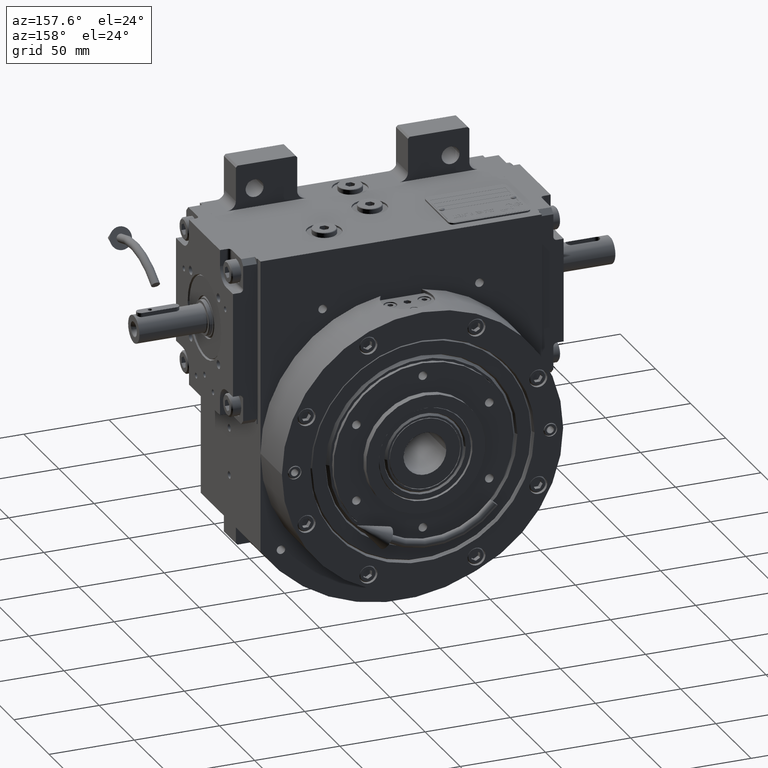
[diagram: clean part render]
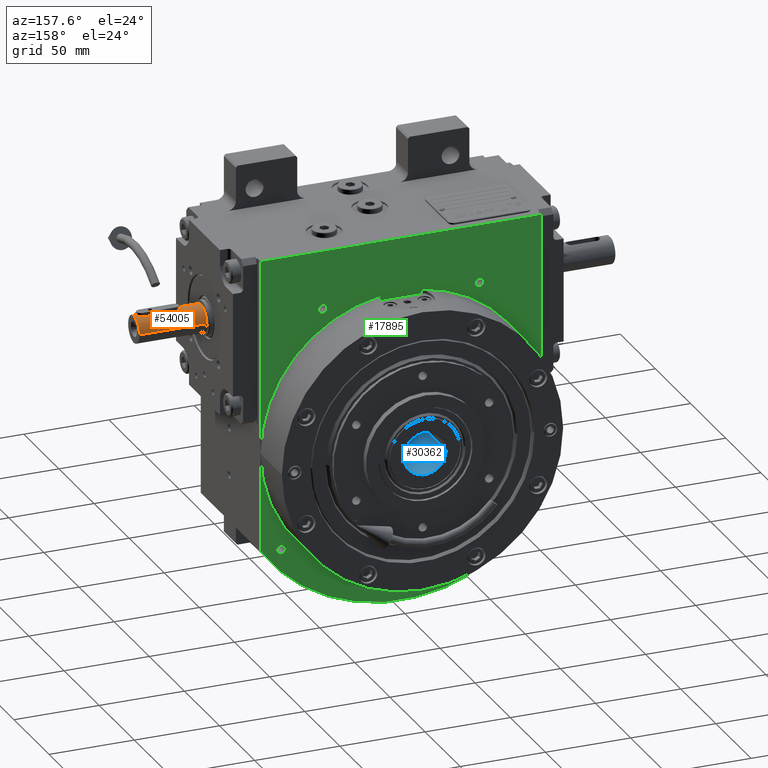
[diagram: same view with three faces highlighted in distinct colors, each labeled with its STEP entity id]
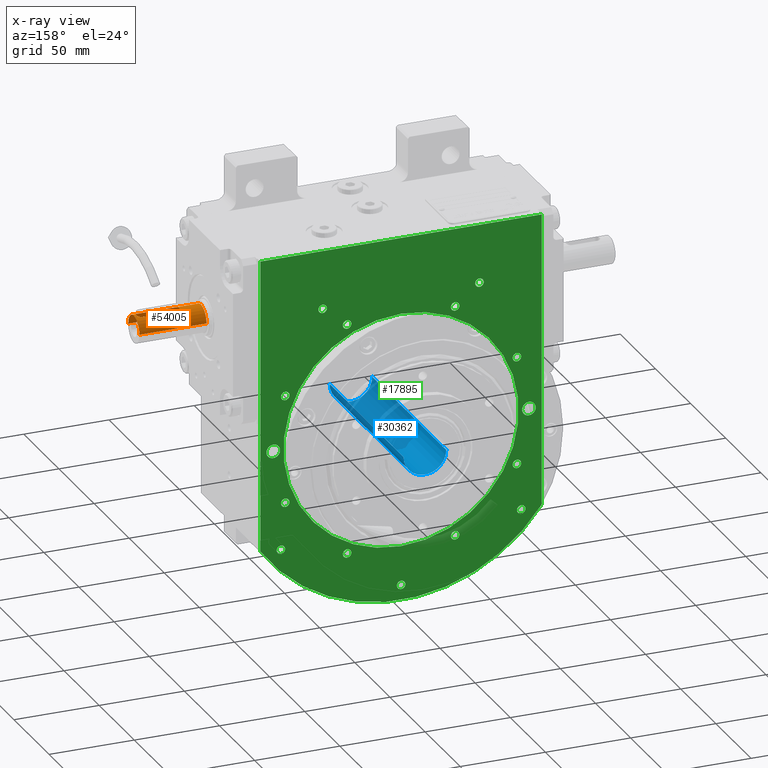
[diagram: x-ray of the same camera — body ghosted, the three highlighted faces saturated]
A machine part, auxiliary view with three faces highlighted in distinct colors.
The next image is the same camera in x-ray (body ghosted, the three faces saturated) — at least one of them is partly hidden behind the body in this view.
Their STEP definitions:

[orange] entity #54005 — the highlighted cylindrical surface (edge-blend (fillet) strip) has radius 8 mm, axis along (-1, 0, 0).
#294 = CARTESIAN_POINT ( 'NONE',  ( -1.693420934586990390, -79.66071306435799215, 7.818701610350905717 ) ) ;
#507 = EDGE_CURVE ( 'NONE', #14905, #35915, #59081, .T. ) ;
#657 = DIRECTION ( 'NONE',  ( 1.000000000000000000, 0.000000000000000000, -8.437694987151189707E-15 ) ) ;
#740 = CARTESIAN_POINT ( 'NONE',  ( 2.499999999999934275, -81.49999999999998579, 7.599342076785323030 ) ) ;
#894 = CARTESIAN_POINT ( 'NONE',  ( -0.9739860630258452279, -103.8024692427873248, 7.940448518515786702 ) ) ;
#997 = CARTESIAN_POINT ( 'NONE',  ( -2.039842226443641771, -80.04546655734039007, 7.737024747556461080 ) ) ;
#1302 = CARTESIAN_POINT ( 'NONE',  ( 0.7601614020288187668, -103.8820006834997258, 7.963809886907984747 ) ) ;
#1479 = EDGE_CURVE ( 'NONE', #30105, #14905, #27124, .T. ) ;
#1630 = CARTESIAN_POINT ( 'NONE',  ( 0.6392033444089094685, -103.9183691897240607, 7.974666920835501216 ) ) ;
#1662 = DIRECTION ( 'NONE',  ( 4.683861624749757595E-31, -1.000000000000000000, -9.367723249499515189E-31 ) ) ;
#1977 = CARTESIAN_POINT ( 'NONE',  ( 0.5583251389089792793, -103.9382416998808196, 7.980698606350792090 ) ) ;
#2885 = EDGE_CURVE ( 'NONE', #30105, #4517, #27999, .T. ) ;
#3369 = CARTESIAN_POINT ( 'NONE',  ( 2.430346878768975039, -102.1663473157102828, 7.622796429069601309 ) ) ;
#3505 = CARTESIAN_POINT ( 'NONE',  ( 1.860789045275186515, -79.83022871806318221, 7.780784499347873862 ) ) ;
#3753 = CARTESIAN_POINT ( 'NONE',  ( -1.619322404274953664, -103.4162097538556822, 7.835913282276480096 ) ) ;
#4089 = CARTESIAN_POINT ( 'NONE',  ( -2.334563050082438806, -102.3947116797433807, 7.651647996439749910 ) ) ;
#4454 = CARTESIAN_POINT ( 'NONE',  ( -1.073217818120447475, -103.7581458584323713, 7.927505834590044209 ) ) ;
#4517 = VERTEX_POINT ( 'NONE', #61662 ) ;
#4814 = CARTESIAN_POINT ( 'NONE',  ( -2.321781631207970431, -102.4270937209118841, 7.655485254225465219 ) ) ;
#4915 = CARTESIAN_POINT ( 'NONE',  ( 2.309893421232838584, -80.54375579039783872, 7.659059943619897837 ) ) ;
#5258 = CARTESIAN_POINT ( 'NONE',  ( -0.9256277952045682822, -79.17762717140867323, 7.946252628734393753 ) ) ;
#5609 = CARTESIAN_POINT ( 'NONE',  ( -2.500000000000066169, -81.49999999999998579, 7.599342076785323030 ) ) ;
#5868 = CARTESIAN_POINT ( 'NONE',  ( -0.3122289411811475790, -104.0000000000000142, 7.999999999999710454 ) ) ;
#5971 = CARTESIAN_POINT ( 'NONE',  ( -1.674829783585241039, -79.64377826720813403, 7.822663933521245561 ) ) ;
#6257 = CARTESIAN_POINT ( 'NONE',  ( 1.674829741835547114, -103.3562217703935033, 7.822663943330967484 ) ) ;
#6307 = CARTESIAN_POINT ( 'NONE',  ( 0.6420978377273284243, -79.05937359642165063, 7.980692895796765995 ) ) ;
#6615 = CARTESIAN_POINT ( 'NONE',  ( 1.400394581815520567, -103.5725665278173153, 7.876043154077071229 ) ) ;
#6815 = VECTOR ( 'NONE', #1662, 1000.000000000000000 ) ;
#7888 = CARTESIAN_POINT ( 'NONE',  ( -2.500000000000066169, -81.49999999999998579, 7.599342076785323030 ) ) ;
#8283 = EDGE_CURVE ( 'NONE', #49467, #18082, #28607, .T. ) ;
#8879 = ORIENTED_EDGE ( 'NONE', *, *, #66856, .F. ) ;
#9280 = FACE_BOUND ( 'NONE', #12291, .T. ) ;
#9426 = CARTESIAN_POINT ( 'NONE',  ( -1.103304680731177934, -103.7436430396096938, 7.923293706657409174 ) ) ;
#9529 = B_SPLINE_CURVE_WITH_KNOTS ( 'NONE', 3,
 ( #63796, #15200, #15555, #20856, #63092, #31844, #36817, #26170, #48159, #47813, #42508, #4915, #53500, #26514, #69784, #52440, #21204, #52084, #3505, #25116, #46771, #47103, #32907, #38586, #54202, #11656, #60974, #60257, #54908, #55271, #33259, #37887, #66234, #10940, #6307, #22961, #43561, #32196, #38234, #17647, #16594, #27917, #22244, #5258, #59905, #65894, #27573, #21553, #49933, #48871, #65175, #54561, #22608, #5971, #294, #64839, #16250, #39290, #997, #10593, #11292, #43919, #21906, #53840, #59542, #32558, #43231, #49579, #17311, #48521, #26864, #5609 ),
 .UNSPECIFIED., .F., .F.,
 ( 4, 2, 2, 1, 1, 1, 2, 2, 2, 2, 2, 2, 2, 2, 2, 2, 1, 1, 2, 2, 2, 2, 2, 1, 1, 1, 2, 2, 2, 2, 2, 2, 2, 2, 2, 2, 1, 1, 2, 2, 4 ),
 ( 0.000000000000000000, 0.06249999999999940326, 0.09375000000000167921, 0.1093750000000002776, 0.1171874999999970440, 0.1210937499999929085, 0.1230468749999908268, 0.1249999999999887590, 0.1875000000000156264, 0.2187500000000291156, 0.2343750000000358324, 0.2421875000000376921, 0.2500000000000395239, 0.3125000000000400791, 0.3437500000000390799, 0.3593750000000385247, 0.3671875000000383027, 0.3710937500000381917, 0.3730468750000382472, 0.3750000000000382472, 0.5000000000000400791, 0.5625000000000409672, 0.5937500000000408562, 0.6093750000000408562, 0.6171875000000399680, 0.6210937500000405231, 0.6230468750000406342, 0.6250000000000408562, 0.6874999999999886757, 0.7187499999999611422, 0.7343749999999473754, 0.7421874999999404920, 0.7499999999999336087, 0.8124999999998833156, 0.8437499999998581135, 0.8593749999998456790, 0.8671874999998393507, 0.8710937499998362421, 0.8730468749998382405, 0.8749999999998402389, 1.000000000000000000 ),
 .UNSPECIFIED. ) ;
#9934 = EDGE_CURVE ( 'NONE', #4517, #35915, #47375, .T. ) ;
#10134 = CARTESIAN_POINT ( 'NONE',  ( -1.262573481225525374, -103.6592927539918350, 7.899329246347268629 ) ) ;
#10273 = ORIENTED_EDGE ( 'NONE', *, *, #31064, .T. ) ;
#10593 = CARTESIAN_POINT ( 'NONE',  ( -2.168659579177123931, -80.25357648016695578, 7.701311984265553079 ) ) ;
#10940 = CARTESIAN_POINT ( 'NONE',  ( 0.9654889590629808227, -79.19395140777740494, 7.941492741751966733 ) ) ;
#11292 = CARTESIAN_POINT ( 'NONE',  ( -2.204339293450607862, -80.31874706351440807, 7.690878176541270150 ) ) ;
#11656 = CARTESIAN_POINT ( 'NONE',  ( 1.196502427732053730, -79.30381167198214598, 7.909689381527173602 ) ) ;
#12291 = EDGE_LOOP ( 'NONE', ( #10273, #54534, #36777, #51256, #8879 ) ) ;
#12654 = CARTESIAN_POINT ( 'NONE',  ( 1.924781711887127322, -103.1107540319521689, 7.766715037473522543 ) ) ;
#12984 = CARTESIAN_POINT ( 'NONE',  ( 1.582158747936825760, -103.4362196727485923, 7.841748880057241244 ) ) ;
#13292 = ORIENTED_EDGE ( 'NONE', *, *, #9934, .T. ) ;
#14905 = VERTEX_POINT ( 'NONE', #66410 ) ;
#15200 = CARTESIAN_POINT ( 'NONE',  ( 2.499999999999936495, -81.33046526988005098, 7.601053109335280666 ) ) ;
#15267 = DIRECTION ( 'NONE',  ( 1.000000000000000000, 0.000000000000000000, -8.437694987151184974E-15 ) ) ;
#15555 = CARTESIAN_POINT ( 'NONE',  ( 2.482707356171678370, -81.16371504373714174, 7.606916456933626058 ) ) ;
#15814 = CARTESIAN_POINT ( 'NONE',  ( -8.000000000000065725, -66.09999999999999432, 0.000000000000000000 ) ) ;
#15910 = VECTOR ( 'NONE', #37804, 1000.000000000000000 ) ;
#15933 = CARTESIAN_POINT ( 'NONE',  ( -8.881784197000813520E-16, -66.09999999999999432, 0.000000000000000000 ) ) ;
#16250 = CARTESIAN_POINT ( 'NONE',  ( -1.748128541432759198, -79.71259486395139504, 7.806733636063505344 ) ) ;
#16594 = CARTESIAN_POINT ( 'NONE',  ( -0.7601371585158931410, -79.11799152341782815, 7.963812738570651639 ) ) ;
#17138 = AXIS2_PLACEMENT_3D ( 'NONE', #41194, #41892, #15267 ) ;
#17311 = CARTESIAN_POINT ( 'NONE',  ( -2.306742151783235606, -80.53617158843383095, 7.660008567906831267 ) ) ;
#17647 = CARTESIAN_POINT ( 'NONE',  ( -0.6391695085849001812, -79.08162164491186275, 7.974670843423039557 ) ) ;
#18082 = VERTEX_POINT ( 'NONE', #20638 ) ;
#18292 = CARTESIAN_POINT ( 'NONE',  ( 1.193536090284757822, -103.7027300309425470, 7.910995323808521995 ) ) ;
#18627 = CARTESIAN_POINT ( 'NONE',  ( 0.8906742496777694251, -103.8361301771416834, 7.950276292533050793 ) ) ;
#19328 = CARTESIAN_POINT ( 'NONE',  ( 2.281394072897041880, -102.5224785235288039, 7.667699372738701058 ) ) ;
#19695 = CARTESIAN_POINT ( 'NONE',  ( -1.943922020714331289, -103.0727322403290174, 7.760753481466680093 ) ) ;
#20015 = VECTOR ( 'NONE', #31752, 1000.000000000000000 ) ;
#20172 = CARTESIAN_POINT ( 'NONE',  ( -8.000000000000000000, -105.4999999999999858, 5.273559366969493567E-13 ) ) ;
#20638 = CARTESIAN_POINT ( 'NONE',  ( -2.500000000000066169, -101.5000000000000000, 7.599342076785850608 ) ) ;
#20757 = CARTESIAN_POINT ( 'NONE',  ( -2.500000000000066169, -101.5000000000000000, 7.599342076785850608 ) ) ;
#20856 = CARTESIAN_POINT ( 'NONE',  ( 2.433768593788077972, -80.92250430396406102, 7.621939950903765748 ) ) ;
#21105 = CARTESIAN_POINT ( 'NONE',  ( -2.482707383844124038, -101.8362847497630952, 7.606916429779071898 ) ) ;
#21204 = CARTESIAN_POINT ( 'NONE',  ( 1.943922035151659733, -79.92726777720164932, 7.760753477608751894 ) ) ;
#21553 = CARTESIAN_POINT ( 'NONE',  ( -1.067508236372659569, -79.23640628122829810, 7.929129305063736588 ) ) ;
#21906 = CARTESIAN_POINT ( 'NONE',  ( -2.262901956743322174, -80.43691029397633940, 7.673319066181252701 ) ) ;
#22244 = CARTESIAN_POINT ( 'NONE',  ( -0.8906645423323721333, -79.16386607656249907, 7.950277459945172431 ) ) ;
#22608 = CARTESIAN_POINT ( 'NONE',  ( -1.619150631844596289, -79.59453235858265430, 7.834308677923846886 ) ) ;
#22961 = CARTESIAN_POINT ( 'NONE',  ( 0.3121782513797731196, -79.00000002186202153, 7.999994292076680225 ) ) ;
#23090 = VERTEX_POINT ( 'NONE', #740 ) ;
#23234 = CARTESIAN_POINT ( 'NONE',  ( 0.9405903361060158341, -103.8163157804874430, 7.944484931987513043 ) ) ;
#23577 = CARTESIAN_POINT ( 'NONE',  ( 0.9571699627064862437, -103.8095105061650685, 7.942501022636291097 ) ) ;
#25116 = CARTESIAN_POINT ( 'NONE',  ( 1.843069730316523103, -79.81067629450772927, 7.784956261883010598 ) ) ;
#25353 = CARTESIAN_POINT ( 'NONE',  ( -1.469426813124658615, -103.5291211921942960, 7.864377076594892380 ) ) ;
#25558 = CARTESIAN_POINT ( 'NONE',  ( 2.927413515468598497E-29, -65.50000000000000000, 0.000000000000000000 ) ) ;
#25666 = CARTESIAN_POINT ( 'NONE',  ( 2.499999999999934275, -101.5000000000000000, 7.599342076785323030 ) ) ;
#26170 = CARTESIAN_POINT ( 'NONE',  ( 2.334563021455908327, -80.60528824611051846, 7.651648004319794971 ) ) ;
#26514 = CARTESIAN_POINT ( 'NONE',  ( 2.211639362258275732, -80.32302285553738841, 7.689393544937220604 ) ) ;
#26839 = DIRECTION ( 'NONE',  ( -7.962564762074587911E-30, -1.000000000000000000, 1.002546245711064011E-15 ) ) ;
#26864 = CARTESIAN_POINT ( 'NONE',  ( -2.500000000000065281, -81.16084879098659144, 7.602765040137509978 ) ) ;
#27124 = LINE ( 'NONE', #70052, #15910 ) ;
#27473 = CARTESIAN_POINT ( 'NONE',  ( 4.385040994232079924E-11, -103.9999999999955804, 8.000000000000120792 ) ) ;
#27573 = CARTESIAN_POINT ( 'NONE',  ( -0.9571700192519310146, -79.19048951727215524, 7.942501018822824221 ) ) ;
#27860 = CARTESIAN_POINT ( 'NONE',  ( 1.730604303250870668, -103.3043446562647034, 7.810615493049329672 ) ) ;
#27917 = CARTESIAN_POINT ( 'NONE',  ( -0.8205310525004978484, -79.13781588510421727, 7.957931175922659861 ) ) ;
#27999 = CIRCLE ( 'NONE', #40469, 8.000000000000000000 ) ;
#28223 = CARTESIAN_POINT ( 'NONE',  ( 1.693420889178520294, -103.3392869773679053, 7.818701621006987956 ) ) ;
#28607 = LINE ( 'NONE', #65876, #6815 ) ;
#30105 = VERTEX_POINT ( 'NONE', #64482 ) ;
#30179 = DIRECTION ( 'NONE',  ( 1.000000000000000000, 0.000000000000000000, -8.437694987151189707E-15 ) ) ;
#30675 = CARTESIAN_POINT ( 'NONE',  ( -2.309893432402044589, -102.4562441826294759, 7.659059942767486362 ) ) ;
#31023 = CARTESIAN_POINT ( 'NONE',  ( -1.008357172198633744, -103.7877103616287258, 7.936136174749776728 ) ) ;
#31064 = EDGE_CURVE ( 'NONE', #23090, #49898, #54292, .T. ) ;
#31358 = VERTEX_POINT ( 'NONE', #51400 ) ;
#31372 = CARTESIAN_POINT ( 'NONE',  ( -2.032618819128730436, -102.9586770806716061, 7.738482214712804286 ) ) ;
#31752 = DIRECTION ( 'NONE',  ( 4.683861624749757595E-31, -1.000000000000000000, -9.367723249499515189E-31 ) ) ;
#31844 = CARTESIAN_POINT ( 'NONE',  ( 2.378121920320446225, -80.72788381417944947, 7.638611844260628558 ) ) ;
#32098 = CARTESIAN_POINT ( 'NONE',  ( -2.433768643298963585, -102.0774954870597071, 7.621939923613155976 ) ) ;
#32196 = CARTESIAN_POINT ( 'NONE',  ( -0.3163611264303023973, -79.01466021605666867, 7.995178932222377632 ) ) ;
#32558 = CARTESIAN_POINT ( 'NONE',  ( -2.299652578068983377, -80.51934854338620084, 7.662151317218241608 ) ) ;
#32907 = CARTESIAN_POINT ( 'NONE',  ( 1.619322386118688062, -79.58379023461478141, 7.835913286343736850 ) ) ;
#33259 = CARTESIAN_POINT ( 'NONE',  ( 0.9841849079011064649, -79.20185371595601964, 7.939186577244388587 ) ) ;
#33858 = CARTESIAN_POINT ( 'NONE',  ( -0.9841849342362438691, -103.7981462727568385, 7.939186575924312983 ) ) ;
#35300 = CARTESIAN_POINT ( 'NONE',  ( 2.249329146587023320, -102.5916207879226505, 7.677433120866428595 ) ) ;
#35915 = VERTEX_POINT ( 'NONE', #20172 ) ;
#36172 = EDGE_CURVE ( 'NONE', #18082, #31358, #54586, .T. ) ;
#36375 = CARTESIAN_POINT ( 'NONE',  ( -1.860789053244781277, -103.1697712729407925, 7.780784497345386796 ) ) ;
#36725 = CARTESIAN_POINT ( 'NONE',  ( -2.312435461662479597, -102.4500878185152430, 7.658295087710894400 ) ) ;
#36777 = ORIENTED_EDGE ( 'NONE', *, *, #36172, .F. ) ;
#36817 = CARTESIAN_POINT ( 'NONE',  ( 2.359042001678974376, -80.67071240173901003, 7.644314115432109702 ) ) ;
#37804 = DIRECTION ( 'NONE',  ( 4.683861624749757595E-31, -1.000000000000000000, -9.367723249499515189E-31 ) ) ;
#37887 = CARTESIAN_POINT ( 'NONE',  ( 0.9739860343722317459, -79.19753074509038981, 7.940448520076104799 ) ) ;
#37983 = AXIS2_PLACEMENT_3D ( 'NONE', #25558, #63207, #30179 ) ;
#38234 = CARTESIAN_POINT ( 'NONE',  ( -0.5582878383232234842, -79.06174975841848607, 7.980702886066483259 ) ) ;
#38448 = ORIENTED_EDGE ( 'NONE', *, *, #507, .F. ) ;
#38586 = CARTESIAN_POINT ( 'NONE',  ( 1.469426811532480448, -79.47087880693786133, 7.864377077441821129 ) ) ;
#38638 = EDGE_LOOP ( 'NONE', ( #13292, #38448, #68340, #53056 ) ) ;
#39178 = CARTESIAN_POINT ( 'NONE',  ( -0.6420507535615168626, -103.9406460026054617, 7.980698606383382021 ) ) ;
#39290 = CARTESIAN_POINT ( 'NONE',  ( -1.924781681136912503, -79.88924594813117608, 7.766715043241143590 ) ) ;
#39584 = CARTESIAN_POINT ( 'NONE',  ( 0.1561144705904728980, -104.0000000000000142, 7.999999999999712230 ) ) ;
#40263 = CARTESIAN_POINT ( 'NONE',  ( 1.619150600551494401, -103.4054676677428688, 7.834308685338369216 ) ) ;
#40469 = AXIS2_PLACEMENT_3D ( 'NONE', #15933, #26839, #657 ) ;
#40875 = CYLINDRICAL_SURFACE ( 'NONE', #37983, 8.000000000000000000 ) ;
#41194 = CARTESIAN_POINT ( 'NONE',  ( 8.881784196980167057E-16, -105.4999999999999858, 5.273559366969493567E-13 ) ) ;
#41319 = CARTESIAN_POINT ( 'NONE',  ( 2.262901976323552500, -102.5630896637919989, 7.673319054273617823 ) ) ;
#41349 = CARTESIAN_POINT ( 'NONE',  ( -2.500000000000065281, -101.6695345930384065, 7.601053091262465422 ) ) ;
#41564 = FACE_OUTER_BOUND ( 'NONE', #38638, .T. ) ;
#41677 = CARTESIAN_POINT ( 'NONE',  ( 2.306742137515188862, -102.4638284456815995, 7.660008568000871598 ) ) ;
#41710 = CARTESIAN_POINT ( 'NONE',  ( -2.359042043660067645, -102.3292874808928445, 7.644314101199683797 ) ) ;
#41892 = DIRECTION ( 'NONE',  ( 4.683861624749757595E-31, -1.000000000000000000, -9.367723249499515189E-31 ) ) ;
#42508 = CARTESIAN_POINT ( 'NONE',  ( 2.312435448347983868, -80.54991214909891539, 7.658295089364600905 ) ) ;
#42770 = CARTESIAN_POINT ( 'NONE',  ( -2.413631302826460878, -102.1564244269222286, 7.627985835901045952 ) ) ;
#43119 = CARTESIAN_POINT ( 'NONE',  ( -0.9672228224972615473, -103.8053185195522730, 7.941279730866193098 ) ) ;
#43231 = CARTESIAN_POINT ( 'NONE',  ( -2.303557479101959515, -80.52859177676407398, 7.660970409150063887 ) ) ;
#43473 = CARTESIAN_POINT ( 'NONE',  ( -0.9654897271027074179, -103.8060482725256577, 7.941492650600213921 ) ) ;
#43561 = CARTESIAN_POINT ( 'NONE',  ( -0.1560888630750259798, -78.99999998906898213, 8.000002853960385352 ) ) ;
#43919 = CARTESIAN_POINT ( 'NONE',  ( -2.249329119355337969, -80.40837915558012128, 7.677433135013878029 ) ) ;
#44560 = CARTESIAN_POINT ( 'NONE',  ( 0.9256327576328409190, -103.8223708385404365, 7.946252027353325254 ) ) ;
#44888 = CARTESIAN_POINT ( 'NONE',  ( 0.9505563138213194430, -103.8122438603152915, 7.943297443901697008 ) ) ;
#45914 = CARTESIAN_POINT ( 'NONE',  ( 2.499999999999935607, -101.8391516377785422, 7.602765096812790446 ) ) ;
#46278 = CARTESIAN_POINT ( 'NONE',  ( 2.204339340298131944, -102.6812528476400956, 7.690878157353457034 ) ) ;
#46636 = CARTESIAN_POINT ( 'NONE',  ( 2.168659634716334494, -102.7464234234344218, 7.701311963956271711 ) ) ;
#46771 = CARTESIAN_POINT ( 'NONE',  ( 1.806370080199156014, -79.77148973213682837, 7.793483740494734135 ) ) ;
#46999 = CARTESIAN_POINT ( 'NONE',  ( -1.806370105743895893, -103.2285102410354085, 7.793483734321789314 ) ) ;
#47103 = CARTESIAN_POINT ( 'NONE',  ( 1.786310771109915763, -79.75077664594313376, 7.798083882302994319 ) ) ;
#47375 = LINE ( 'NONE', #15814, #20015 ) ;
#47813 = CARTESIAN_POINT ( 'NONE',  ( 2.316189119986125089, -80.55910011815063854, 7.657166291048784323 ) ) ;
#48159 = CARTESIAN_POINT ( 'NONE',  ( 2.321781611066191076, -80.57290622878713293, 7.655485258560551287 ) ) ;
#48253 = CARTESIAN_POINT ( 'NONE',  ( 2.499999999999934275, -81.49999999999998579, 7.599342076785323030 ) ) ;
#48421 = CARTESIAN_POINT ( 'NONE',  ( -1.912125993829062898, -103.1113541516930638, 7.768545143780593243 ) ) ;
#48521 = CARTESIAN_POINT ( 'NONE',  ( -2.430347043750785030, -80.83365309564688062, 7.622796372071170445 ) ) ;
#48871 = CARTESIAN_POINT ( 'NONE',  ( -1.400394583862470066, -79.42743347347914096, 7.876043153365923644 ) ) ;
#48969 = B_SPLINE_CURVE_WITH_KNOTS ( 'NONE', 3,
 ( #55213, #39584, #66528, #1977, #1630, #1302, #56243, #18627, #44560, #23234, #44888, #23577, #61237, #18292, #6615, #61579, #12984, #40263, #6257, #28223, #27860, #49523, #12654, #52301, #46636, #46278, #35300, #41319, #19328, #57648, #68266, #51260, #62617, #41677, #3369, #45914, #25666 ),
 .UNSPECIFIED., .F., .F.,
 ( 4, 2, 2, 1, 1, 1, 2, 2, 2, 2, 2, 2, 2, 2, 2, 2, 1, 1, 2, 2, 4 ),
 ( 0.5000000000000000000, 0.5625000000000396350, 0.5937500000000593969, 0.6093750000000692779, 0.6171875000000733857, 0.6210937500000744960, 0.6230468750000750511, 0.6250000000000754952, 0.6875000000000667244, 0.7187500000000608402, 0.7343750000000579536, 0.7421875000000551781, 0.7500000000000524025, 0.8125000000000217604, 0.8437500000000064393, 0.8593749999999986677, 0.8671874999999947820, 0.8710937499999963363, 0.8730468750000007772, 0.8750000000000052180, 1.000000000000000000 ),
 .UNSPECIFIED. ) ;
#49467 = VERTEX_POINT ( 'NONE', #7888 ) ;
#49523 = CARTESIAN_POINT ( 'NONE',  ( 1.748128468984877948, -103.2874052071413757, 7.806733652958826042 ) ) ;
#49579 = CARTESIAN_POINT ( 'NONE',  ( -2.306126302292645480, -80.53470601702331066, 7.660194624969506982 ) ) ;
#49898 = VERTEX_POINT ( 'NONE', #50378 ) ;
#49933 = CARTESIAN_POINT ( 'NONE',  ( -1.193536086755152992, -79.29726996681931439, 7.910995325772343989 ) ) ;
#50378 = CARTESIAN_POINT ( 'NONE',  ( 2.499999999999934275, -101.5000000000000000, 7.599342076785323030 ) ) ;
#51199 = VECTOR ( 'NONE', #59300, 1000.000000000000000 ) ;
#51256 = ORIENTED_EDGE ( 'NONE', *, *, #8283, .F. ) ;
#51260 = CARTESIAN_POINT ( 'NONE',  ( 2.303557467424539151, -102.4714082509158430, 7.660970408203831461 ) ) ;
#51400 = CARTESIAN_POINT ( 'NONE',  ( 4.385040994232079924E-11, -103.9999999999955804, 8.000000000000120792 ) ) ;
#52084 = CARTESIAN_POINT ( 'NONE',  ( 1.912126000616581001, -79.88864585588555656, 7.768545142054657404 ) ) ;
#52301 = CARTESIAN_POINT ( 'NONE',  ( 2.039842285281525225, -102.9545333609491138, 7.737024730599107336 ) ) ;
#52337 = CARTESIAN_POINT ( 'NONE',  ( -1.786310813231847927, -103.2492233111073148, 7.798083872374331094 ) ) ;
#52440 = CARTESIAN_POINT ( 'NONE',  ( 2.032618850961132484, -80.04132296233069610, 7.738482205519764179 ) ) ;
#53037 = CARTESIAN_POINT ( 'NONE',  ( -1.196502426440154032, -103.6961883285300132, 7.909689382643851907 ) ) ;
#53056 = ORIENTED_EDGE ( 'NONE', *, *, #2885, .T. ) ;
#53402 = CARTESIAN_POINT ( 'NONE',  ( -1.029707664918064092, -103.7781476961735336, 7.933340056381174676 ) ) ;
#53500 = CARTESIAN_POINT ( 'NONE',  ( 2.268657162229617441, -80.44451192643948900, 7.671471542138298183 ) ) ;
#53742 = CARTESIAN_POINT ( 'NONE',  ( -2.211639328035650998, -102.6769772081062655, 7.689393558455789091 ) ) ;
#53840 = CARTESIAN_POINT ( 'NONE',  ( -2.281394066029703183, -80.47752146100458503, 7.667699380447071889 ) ) ;
#54005 = ADVANCED_FACE ( 'NONE', ( #41564, #9280 ), #40875, .T. ) ;
#54202 = CARTESIAN_POINT ( 'NONE',  ( 1.262573484231561682, -79.34070724783289563, 7.899329245348400086 ) ) ;
#54292 = LINE ( 'NONE', #48253, #51199 ) ;
#54534 = ORIENTED_EDGE ( 'NONE', *, *, #69642, .F. ) ;
#54561 = CARTESIAN_POINT ( 'NONE',  ( -1.582158772954937120, -79.56378034752202666, 7.841748874047691054 ) ) ;
#54586 = B_SPLINE_CURVE_WITH_KNOTS ( 'NONE', 3,
 ( #20757, #41349, #21105, #32098, #42770, #57684, #41710, #4089, #4814, #68623, #36725, #30675, #64030, #53742, #58388, #31372, #19695, #48421, #36375, #58747, #46999, #52337, #3753, #25353, #10134, #53037, #9426, #4454, #53402, #31023, #33858, #894, #43119, #43473, #39178, #5868, #27473 ),
 .UNSPECIFIED., .F., .F.,
 ( 4, 2, 2, 1, 1, 1, 2, 2, 2, 2, 2, 2, 2, 2, 2, 2, 1, 1, 2, 2, 4 ),
 ( 0.000000000000000000, 0.06250000000000981160, 0.09375000000001730560, 0.1093750000000184852, 0.1171875000000165562, 0.1210937500000155848, 0.1230468750000150990, 0.1250000000000145994, 0.1875000000000366374, 0.2187500000000476286, 0.2343750000000531519, 0.2421875000000559275, 0.2500000000000586753, 0.3125000000000808797, 0.3437500000000905942, 0.3593750000000939804, 0.3671875000000942579, 0.3710937500000929812, 0.3730468750000924261, 0.3750000000000918710, 0.5000000000000000000 ),
 .UNSPECIFIED. ) ;
#54908 = CARTESIAN_POINT ( 'NONE',  ( 1.029707647488318001, -79.22185229593100075, 7.933340056805956664 ) ) ;
#55213 = CARTESIAN_POINT ( 'NONE',  ( 4.385040994232079924E-11, -103.9999999999955804, 8.000000000000120792 ) ) ;
#55271 = CARTESIAN_POINT ( 'NONE',  ( 1.008357150952972514, -79.21228962897184545, 7.936136175550103644 ) ) ;
#56243 = CARTESIAN_POINT ( 'NONE',  ( 0.8205494057223722271, -103.8621775848404667, 7.957928993530575035 ) ) ;
#57648 = CARTESIAN_POINT ( 'NONE',  ( 2.290173002886755960, -102.5027187581402615, 7.665027386559819966 ) ) ;
#57684 = CARTESIAN_POINT ( 'NONE',  ( -2.378121968122614227, -102.2721160393968063, 7.638611825847669401 ) ) ;
#58388 = CARTESIAN_POINT ( 'NONE',  ( -2.082829102350954642, -102.8850916564722837, 7.725106330460694615 ) ) ;
#58747 = CARTESIAN_POINT ( 'NONE',  ( -1.843069743752230982, -103.1893236906983304, 7.784956258549307506 ) ) ;
#59081 = CIRCLE ( 'NONE', #17138, 8.000000000000000000 ) ;
#59300 = DIRECTION ( 'NONE',  ( 4.683861624749757595E-31, -1.000000000000000000, -9.367723249499515189E-31 ) ) ;
#59542 = CARTESIAN_POINT ( 'NONE',  ( -2.290173002686686665, -80.49728124111598504, 7.665027391958669334 ) ) ;
#59905 = CARTESIAN_POINT ( 'NONE',  ( -0.9405874952399069233, -79.18368306412415336, 7.944485278239328707 ) ) ;
#60257 = CARTESIAN_POINT ( 'NONE',  ( 1.073217807602763418, -79.24185413649865950, 7.927505834357015502 ) ) ;
#60974 = CARTESIAN_POINT ( 'NONE',  ( 1.103304673860907359, -79.25635695696504968, 7.923293706110198009 ) ) ;
#61237 = CARTESIAN_POINT ( 'NONE',  ( 1.067508222952339603, -103.7635937273605720, 7.929129304385879706 ) ) ;
#61579 = CARTESIAN_POINT ( 'NONE',  ( 1.472239342304371812, -103.5226722468600258, 7.863100564355685052 ) ) ;
#61662 = CARTESIAN_POINT ( 'NONE',  ( -8.000000000000065725, -66.09999999999999432, 3.480229993080286022E-09 ) ) ;
#62617 = CARTESIAN_POINT ( 'NONE',  ( 2.306126288175577077, -102.4652940166914163, 7.660194624968016619 ) ) ;
#63092 = CARTESIAN_POINT ( 'NONE',  ( 2.413631249271968482, -80.84357537995785492, 7.627985860989250355 ) ) ;
#63207 = DIRECTION ( 'NONE',  ( -4.683861624749757595E-31, 1.000000000000000000, 9.367723249499515189E-31 ) ) ;
#63796 = CARTESIAN_POINT ( 'NONE',  ( 2.499999999999934275, -81.49999999999998579, 7.599342076785323030 ) ) ;
#64030 = CARTESIAN_POINT ( 'NONE',  ( -2.268657147672601404, -102.5554881115370307, 7.671471551454430937 ) ) ;
#64482 = CARTESIAN_POINT ( 'NONE',  ( 7.999999999999934275, -66.09999999999999432, -3.480229993080286022E-09 ) ) ;
#64839 = CARTESIAN_POINT ( 'NONE',  ( -1.730604356255505127, -79.69565539449075686, 7.810615480604616856 ) ) ;
#65175 = CARTESIAN_POINT ( 'NONE',  ( -1.472239351285113518, -79.47732775901589264, 7.863100561985560510 ) ) ;
#65876 = CARTESIAN_POINT ( 'NONE',  ( -2.500000000000066169, -81.49999999999998579, 7.599342076785323030 ) ) ;
#65894 = CARTESIAN_POINT ( 'NONE',  ( -0.9505549066143550441, -79.18775555938863420, 7.943297617279672096 ) ) ;
#66234 = CARTESIAN_POINT ( 'NONE',  ( 0.9672227922674254685, -79.19468146776313233, 7.941279732590551532 ) ) ;
#66410 = CARTESIAN_POINT ( 'NONE',  ( 8.000000000000000000, -105.4999999999999858, 0.000000000000000000 ) ) ;
#66528 = CARTESIAN_POINT ( 'NONE',  ( 0.3163992054419080269, -103.9853349339470299, 7.995174651587482195 ) ) ;
#66856 = EDGE_CURVE ( 'NONE', #23090, #49467, #9529, .T. ) ;
#68266 = CARTESIAN_POINT ( 'NONE',  ( 2.299652570020695563, -102.4806514754110225, 7.662151314881127107 ) ) ;
#68340 = ORIENTED_EDGE ( 'NONE', *, *, #1479, .F. ) ;
#68623 = CARTESIAN_POINT ( 'NONE',  ( -2.316189136086677980, -102.4408998422357797, 7.657166288311987756 ) ) ;
#69642 = EDGE_CURVE ( 'NONE', #31358, #49898, #48969, .T. ) ;
#69784 = CARTESIAN_POINT ( 'NONE',  ( 2.082829138399814539, -80.11490839759532889, 7.725106319125401910 ) ) ;
#70052 = CARTESIAN_POINT ( 'NONE',  ( 7.999999999999934275, -66.09999999999999432, 0.000000000000000000 ) ) ;

[blue] entity #30362 — the highlighted cylindrical surface (edge-blend (fillet) strip) has radius 12.5 mm, axis along (0, -1, 0).
#1357 = AXIS2_PLACEMENT_3D ( 'NONE', #34225, #1933, #32552 ) ;
#1597 = FACE_OUTER_BOUND ( 'NONE', #60619, .T. ) ;
#1933 = DIRECTION ( 'NONE',  ( 0.000000000000000000, 0.000000000000000000, 1.000000000000000000 ) ) ;
#3048 = VERTEX_POINT ( 'NONE', #17672 ) ;
#6695 = ORIENTED_EDGE ( 'NONE', *, *, #7639, .F. ) ;
#7639 = EDGE_CURVE ( 'NONE', #3048, #48578, #20571, .T. ) ;
#9731 = CIRCLE ( 'NONE', #49386, 12.50000000000000000 ) ;
#16763 = CIRCLE ( 'NONE', #42802, 12.50000000000000000 ) ;
#17672 = CARTESIAN_POINT ( 'NONE',  ( -12.50000000000000000, 7.343775652694783940E-16, 11.99999999999986677 ) ) ;
#20571 = LINE ( 'NONE', #60316, #44140 ) ;
#21320 = CARTESIAN_POINT ( 'NONE',  ( 8.881784197001250351E-16, 2.664765652062028867E-15, -93.49999999999894840 ) ) ;
#23063 = DIRECTION ( 'NONE',  ( 0.000000000000000000, 0.000000000000000000, -1.000000000000000000 ) ) ;
#28179 = CARTESIAN_POINT ( 'NONE',  ( 8.881784197001250351E-16, 2.664765652062028867E-15, 11.99999999999986677 ) ) ;
#28456 = VERTEX_POINT ( 'NONE', #61269 ) ;
#28608 = VERTEX_POINT ( 'NONE', #46664 ) ;
#30362 = ADVANCED_FACE ( 'NONE', ( #1597 ), #64836, .F. ) ;
#31599 = LINE ( 'NONE', #46875, #36933 ) ;
#32552 = DIRECTION ( 'NONE',  ( -1.000000000000000000, 0.000000000000000000, 0.000000000000000000 ) ) ;
#34073 = DIRECTION ( 'NONE',  ( 1.000000000000000000, -2.131628207280299986E-16, 0.000000000000000000 ) ) ;
#34225 = CARTESIAN_POINT ( 'NONE',  ( 0.000000000000000000, 2.203979728755689482E-15, 11.99999999999986677 ) ) ;
#34550 = ORIENTED_EDGE ( 'NONE', *, *, #58080, .F. ) ;
#36933 = VECTOR ( 'NONE', #41933, 1000.000000000000000 ) ;
#41933 = DIRECTION ( 'NONE',  ( 0.000000000000000000, 0.000000000000000000, -1.000000000000000000 ) ) ;
#42802 = AXIS2_PLACEMENT_3D ( 'NONE', #28179, #57608, #68911 ) ;
#44140 = VECTOR ( 'NONE', #60647, 1000.000000000000000 ) ;
#45978 = CARTESIAN_POINT ( 'NONE',  ( -12.50000000000000000, 7.343775652694783940E-16, -93.49999999999894840 ) ) ;
#46664 = CARTESIAN_POINT ( 'NONE',  ( 12.50000000000000000, 1.245138432463821498E-15, 11.99999999999986677 ) ) ;
#46875 = CARTESIAN_POINT ( 'NONE',  ( 12.50000000000000000, 3.735415297391464495E-15, 11.99999999999986677 ) ) ;
#48578 = VERTEX_POINT ( 'NONE', #45978 ) ;
#49386 = AXIS2_PLACEMENT_3D ( 'NONE', #21320, #23063, #34073 ) ;
#49631 = EDGE_CURVE ( 'NONE', #28608, #28456, #31599, .T. ) ;
#49800 = EDGE_CURVE ( 'NONE', #28456, #48578, #9731, .T. ) ;
#50748 = ORIENTED_EDGE ( 'NONE', *, *, #49800, .T. ) ;
#57608 = DIRECTION ( 'NONE',  ( 0.000000000000000000, 0.000000000000000000, -1.000000000000000000 ) ) ;
#58080 = EDGE_CURVE ( 'NONE', #28608, #3048, #16763, .T. ) ;
#60316 = CARTESIAN_POINT ( 'NONE',  ( -12.50000000000000000, 2.203979728755689482E-15, 11.99999999999986677 ) ) ;
#60619 = EDGE_LOOP ( 'NONE', ( #63683, #50748, #6695, #34550 ) ) ;
#60647 = DIRECTION ( 'NONE',  ( 0.000000000000000000, 0.000000000000000000, -1.000000000000000000 ) ) ;
#61269 = CARTESIAN_POINT ( 'NONE',  ( 12.50000000000000000, 1.245138432463821498E-15, -93.49999999999894840 ) ) ;
#63683 = ORIENTED_EDGE ( 'NONE', *, *, #49631, .T. ) ;
#64836 = CYLINDRICAL_SURFACE ( 'NONE', #1357, 12.50000000000000000 ) ;
#68911 = DIRECTION ( 'NONE',  ( 1.000000000000000000, -2.131628207280299986E-16, 0.000000000000000000 ) ) ;

[green] entity #17895 — the highlighted planar face has unit normal (0, 1, 0).
#24 = EDGE_CURVE ( 'NONE', #42019, #50719, #21615, .T. ) ;
#196 = DIRECTION ( 'NONE',  ( -0.000000000000000000, -1.000000000000000000, -0.000000000000000000 ) ) ;
#221 = AXIS2_PLACEMENT_3D ( 'NONE', #24156, #9277, #35878 ) ;
#359 = CARTESIAN_POINT ( 'NONE',  ( -70.47608876694599189, 44.50000000000000000, -59.13646009116160229 ) ) ;
#432 = CARTESIAN_POINT ( 'NONE',  ( 75.00000000000000000, 44.50000000000000000, 4.000000000000006217 ) ) ;
#453 = DIRECTION ( 'NONE',  ( 1.000000000000000000, 0.000000000000000000, -5.551115123125785858E-15 ) ) ;
#533 = CARTESIAN_POINT ( 'NONE',  ( 67.97608876694600610, 44.50000000000000000, -59.13646009116160229 ) ) ;
#1103 = AXIS2_PLACEMENT_3D ( 'NONE', #62378, #18740, #24043 ) ;
#1267 = EDGE_CURVE ( 'NONE', #3130, #46361, #58393, .T. ) ;
#1301 = DIRECTION ( 'NONE',  ( 0.000000000000000000, 1.000000000000000000, 0.000000000000000000 ) ) ;
#1367 = ORIENTED_EDGE ( 'NONE', *, *, #37637, .F. ) ;
#1397 = ORIENTED_EDGE ( 'NONE', *, *, #20448, .F. ) ;
#1760 = DIRECTION ( 'NONE',  ( 0.000000000000000000, 1.000000000000000000, 0.000000000000000000 ) ) ;
#1775 = EDGE_CURVE ( 'NONE', #22228, #68445, #69153, .T. ) ;
#1884 = FACE_BOUND ( 'NONE', #4864, .T. ) ;
#2286 = EDGE_CURVE ( 'NONE', #36194, #36191, #21670, .T. ) ;
#2821 = CARTESIAN_POINT ( 'NONE',  ( -67.97308402774881131, 44.50000000000000000, -31.69636963055245360 ) ) ;
#3097 = ORIENTED_EDGE ( 'NONE', *, *, #1775, .F. ) ;
#3130 = VERTEX_POINT ( 'NONE', #12735 ) ;
#3251 = LINE ( 'NONE', #36920, #11976 ) ;
#3866 = CARTESIAN_POINT ( 'NONE',  ( 46.00000000000000000, 44.50000000000000000, 79.67433714816840507 ) ) ;
#4193 = CIRCLE ( 'NONE', #43857, 2.499999999999998668 ) ;
#4538 = DIRECTION ( 'NONE',  ( 0.000000000000000000, 1.000000000000000000, 0.000000000000000000 ) ) ;
#4864 = EDGE_LOOP ( 'NONE', ( #15061, #57860 ) ) ;
#4916 = EDGE_CURVE ( 'NONE', #10487, #50820, #69761, .T. ) ;
#4988 = CARTESIAN_POINT ( 'NONE',  ( -70.47308402774881131, 44.50000000000000000, 31.69636963055245360 ) ) ;
#5066 = ORIENTED_EDGE ( 'NONE', *, *, #57856, .T. ) ;
#5460 = VERTEX_POINT ( 'NONE', #22655 ) ;
#5784 = EDGE_LOOP ( 'NONE', ( #55475, #1397 ) ) ;
#5838 = AXIS2_PLACEMENT_3D ( 'NONE', #7201, #24169, #56504 ) ;
#5872 = CARTESIAN_POINT ( 'NONE',  ( 0.000000000000000000, 44.50000000000000000, 0.000000000000000000 ) ) ;
#5986 = VERTEX_POINT ( 'NONE', #432 ) ;
#6021 = CIRCLE ( 'NONE', #43446, 2.500000000000002220 ) ;
#6172 = CARTESIAN_POINT ( 'NONE',  ( 29.19636963055245005, 44.50000000000000000, -67.97308402774881131 ) ) ;
#6189 = CARTESIAN_POINT ( 'NONE',  ( 43.50000000000000000, 44.50000000000000000, 79.67433714816840507 ) ) ;
#6191 = CIRCLE ( 'NONE', #41316, 69.00000000000000000 ) ;
#6747 = DIRECTION ( 'NONE',  ( -1.000000000000000000, 0.000000000000000000, -2.775557561562888984E-15 ) ) ;
#6875 = AXIS2_PLACEMENT_3D ( 'NONE', #45710, #45368, #56734 ) ;
#7201 = CARTESIAN_POINT ( 'NONE',  ( 70.47608876694599189, 44.50000000000000000, -59.13646009116160229 ) ) ;
#7415 = DIRECTION ( 'NONE',  ( 0.000000000000000000, 1.000000000000000000, 0.000000000000000000 ) ) ;
#7551 = CARTESIAN_POINT ( 'NONE',  ( -70.47308402774881131, 44.50000000000000000, -31.69636963055245360 ) ) ;
#7944 = EDGE_CURVE ( 'NONE', #42230, #10235, #49793, .T. ) ;
#8067 = DIRECTION ( 'NONE',  ( -0.000000000000000000, -1.000000000000000000, -0.000000000000000000 ) ) ;
#8324 = DIRECTION ( 'NONE',  ( -1.000000000000000000, 0.000000000000000000, 0.000000000000000000 ) ) ;
#8558 = DIRECTION ( 'NONE',  ( -3.299775891822714988E-16, 0.000000000000000000, -1.000000000000000000 ) ) ;
#8751 = VERTEX_POINT ( 'NONE', #16849 ) ;
#8942 = DIRECTION ( 'NONE',  ( -0.000000000000000000, 1.000000000000000000, 0.000000000000000000 ) ) ;
#9159 = AXIS2_PLACEMENT_3D ( 'NONE', #36292, #10409, #25610 ) ;
#9277 = DIRECTION ( 'NONE',  ( 0.000000000000000000, 1.000000000000000000, 0.000000000000000000 ) ) ;
#9298 = CARTESIAN_POINT ( 'NONE',  ( 65.47308402774879710, 44.50000000000000000, -31.69636963055249979 ) ) ;
#9533 = CARTESIAN_POINT ( 'NONE',  ( 31.69636963055245360, 44.50000000000000000, -67.97308402774871183 ) ) ;
#9702 = AXIS2_PLACEMENT_3D ( 'NONE', #3866, #25829, #37203 ) ;
#9861 = CIRCLE ( 'NONE', #42738, 4.000000000000006217 ) ;
#10235 = VERTEX_POINT ( 'NONE', #59334 ) ;
#10241 = EDGE_CURVE ( 'NONE', #11088, #8751, #9861, .T. ) ;
#10409 = DIRECTION ( 'NONE',  ( 0.000000000000000000, 1.000000000000000000, 0.000000000000000000 ) ) ;
#10484 = ORIENTED_EDGE ( 'NONE', *, *, #34486, .F. ) ;
#10487 = VERTEX_POINT ( 'NONE', #28743 ) ;
#10652 = ORIENTED_EDGE ( 'NONE', *, *, #54755, .T. ) ;
#10764 = CARTESIAN_POINT ( 'NONE',  ( -43.50000000000000000, 44.50000000000000000, 79.67433714816840507 ) ) ;
#11088 = VERTEX_POINT ( 'NONE', #63047 ) ;
#11362 = DIRECTION ( 'NONE',  ( -1.000000000000000000, 0.000000000000000000, 0.000000000000000000 ) ) ;
#11510 = FACE_BOUND ( 'NONE', #19586, .T. ) ;
#11774 = DIRECTION ( 'NONE',  ( 0.000000000000000000, 1.000000000000000000, 0.000000000000000000 ) ) ;
#11962 = CARTESIAN_POINT ( 'NONE',  ( 31.69636963055249979, 44.50000000000000000, 67.97308402774871183 ) ) ;
#11976 = VECTOR ( 'NONE', #8558, 1000.000000000000000 ) ;
#12088 = AXIS2_PLACEMENT_3D ( 'NONE', #17602, #60553, #50235 ) ;
#12205 = FACE_BOUND ( 'NONE', #58370, .T. ) ;
#12655 = EDGE_LOOP ( 'NONE', ( #32016, #42319 ) ) ;
#12735 = CARTESIAN_POINT ( 'NONE',  ( -82.50000000000000000, 44.50000000000000000, 114.0000000000000000 ) ) ;
#12826 = EDGE_CURVE ( 'NONE', #20017, #53087, #59682, .T. ) ;
#13273 = CARTESIAN_POINT ( 'NONE',  ( -65.47308402774879710, 44.50000000000000000, 31.69636963055245360 ) ) ;
#13461 = LINE ( 'NONE', #51719, #52169 ) ;
#13501 = CARTESIAN_POINT ( 'NONE',  ( 82.50000000000000000, 44.50000000000000000, -58.26448317800490173 ) ) ;
#13543 = CARTESIAN_POINT ( 'NONE',  ( -70.47608876694599189, 44.50000000000000000, -59.13646009116160229 ) ) ;
#13826 = EDGE_CURVE ( 'NONE', #15119, #5986, #34829, .T. ) ;
#15013 = EDGE_CURVE ( 'NONE', #46361, #42230, #3251, .T. ) ;
#15061 = ORIENTED_EDGE ( 'NONE', *, *, #23252, .F. ) ;
#15119 = VERTEX_POINT ( 'NONE', #27661 ) ;
#15877 = CIRCLE ( 'NONE', #18147, 2.500000000000002220 ) ;
#16156 = CARTESIAN_POINT ( 'NONE',  ( 72.97608876694600610, 44.50000000000000000, -59.13646009116160229 ) ) ;
#16278 = AXIS2_PLACEMENT_3D ( 'NONE', #44753, #28435, #453 ) ;
#16655 = CIRCLE ( 'NONE', #27979, 2.500000000000002220 ) ;
#16709 = AXIS2_PLACEMENT_3D ( 'NONE', #46242, #34227, #45877 ) ;
#16849 = CARTESIAN_POINT ( 'NONE',  ( -75.00000000000000000, 44.50000000000000000, -4.000000000000006217 ) ) ;
#17424 = CARTESIAN_POINT ( 'NONE',  ( -65.47308402774879710, 44.50000000000000000, -31.69636963055245360 ) ) ;
#17572 = DIRECTION ( 'NONE',  ( 0.000000000000000000, 1.000000000000000000, 0.000000000000000000 ) ) ;
#17602 = CARTESIAN_POINT ( 'NONE',  ( 67.97308402774871183, 44.50000000000000000, -31.69636963055249979 ) ) ;
#17740 = VERTEX_POINT ( 'NONE', #6172 ) ;
#17859 = FACE_BOUND ( 'NONE', #5784, .T. ) ;
#17877 = EDGE_LOOP ( 'NONE', ( #3097, #57243 ) ) ;
#17895 = ADVANCED_FACE ( 'NONE', ( #22825, #11510, #66439, #60795, #12205, #54772, #22465, #39850, #60458, #50474, #33821, #55473, #17859, #1884, #61153, #41587, #40181 ), #52207, .T. ) ;
#18042 = VERTEX_POINT ( 'NONE', #18887 ) ;
#18147 = AXIS2_PLACEMENT_3D ( 'NONE', #58485, #30062, #24390 ) ;
#18217 = VERTEX_POINT ( 'NONE', #21683 ) ;
#18740 = DIRECTION ( 'NONE',  ( 0.000000000000000000, 1.000000000000000000, 0.000000000000000000 ) ) ;
#18887 = CARTESIAN_POINT ( 'NONE',  ( 0.000000000000000000, 44.50000000000000000, 69.00000000000000000 ) ) ;
#19159 = VERTEX_POINT ( 'NONE', #36284 ) ;
#19367 = CARTESIAN_POINT ( 'NONE',  ( 48.50000000000000000, 44.50000000000000000, 79.67433714816840507 ) ) ;
#19446 = CARTESIAN_POINT ( 'NONE',  ( -31.69636963055245360, 44.50000000000000000, 67.97308402774881131 ) ) ;
#19586 = EDGE_LOOP ( 'NONE', ( #22839, #64788 ) ) ;
#19777 = EDGE_CURVE ( 'NONE', #19159, #42465, #6021, .T. ) ;
#19881 = EDGE_LOOP ( 'NONE', ( #42250, #21788 ) ) ;
#19892 = CARTESIAN_POINT ( 'NONE',  ( -46.00000000000000000, 44.50000000000000000, 79.67433714816840507 ) ) ;
#19919 = DIRECTION ( 'NONE',  ( 1.000000000000000000, 0.000000000000000000, 0.000000000000000000 ) ) ;
#20017 = VERTEX_POINT ( 'NONE', #44834 ) ;
#20082 = AXIS2_PLACEMENT_3D ( 'NONE', #58830, #32886, #43208 ) ;
#20138 = DIRECTION ( 'NONE',  ( 1.000000000000000000, 0.000000000000000000, 0.000000000000000000 ) ) ;
#20165 = DIRECTION ( 'NONE',  ( 1.000000000000000000, 0.000000000000000000, -5.551115123125777969E-15 ) ) ;
#20448 = EDGE_CURVE ( 'NONE', #18217, #55660, #41201, .T. ) ;
#20800 = VERTEX_POINT ( 'NONE', #4988 ) ;
#20936 = ORIENTED_EDGE ( 'NONE', *, *, #60521, .F. ) ;
#20977 = AXIS2_PLACEMENT_3D ( 'NONE', #60523, #17572, #28202 ) ;
#21615 = CIRCLE ( 'NONE', #9159, 2.500000000000002220 ) ;
#21670 = CIRCLE ( 'NONE', #5838, 2.500000000000002220 ) ;
#21681 = ORIENTED_EDGE ( 'NONE', *, *, #58308, .F. ) ;
#21683 = CARTESIAN_POINT ( 'NONE',  ( -29.19636963055245005, 44.50000000000000000, -67.97308402774881131 ) ) ;
#21788 = ORIENTED_EDGE ( 'NONE', *, *, #12826, .F. ) ;
#21876 = DIRECTION ( 'NONE',  ( 0.000000000000000000, 1.000000000000000000, 0.000000000000000000 ) ) ;
#21972 = DIRECTION ( 'NONE',  ( 0.000000000000000000, 1.000000000000000000, 0.000000000000000000 ) ) ;
#22047 = ORIENTED_EDGE ( 'NONE', *, *, #49006, .F. ) ;
#22158 = AXIS2_PLACEMENT_3D ( 'NONE', #62406, #1760, #6747 ) ;
#22228 = VERTEX_POINT ( 'NONE', #64575 ) ;
#22465 = FACE_BOUND ( 'NONE', #37268, .T. ) ;
#22655 = CARTESIAN_POINT ( 'NONE',  ( -34.19636963055244649, 44.50000000000000000, 67.97308402774881131 ) ) ;
#22825 = FACE_BOUND ( 'NONE', #37928, .T. ) ;
#22839 = ORIENTED_EDGE ( 'NONE', *, *, #10241, .F. ) ;
#22909 = DIRECTION ( 'NONE',  ( -1.000000000000000000, 0.000000000000000000, 0.000000000000000000 ) ) ;
#23233 = CARTESIAN_POINT ( 'NONE',  ( 67.97308402774881131, 44.50000000000000000, 31.69636963055249979 ) ) ;
#23252 = EDGE_CURVE ( 'NONE', #50719, #42019, #26041, .T. ) ;
#23848 = ORIENTED_EDGE ( 'NONE', *, *, #37563, .F. ) ;
#24043 = DIRECTION ( 'NONE',  ( 0.8168316831683155588, 0.000000000000000000, -0.5768760710693557892 ) ) ;
#24078 = DIRECTION ( 'NONE',  ( 1.000000000000000000, 0.000000000000000000, 0.000000000000000000 ) ) ;
#24156 = CARTESIAN_POINT ( 'NONE',  ( -31.69636963055249979, 44.50000000000000000, -67.97308402774881131 ) ) ;
#24169 = DIRECTION ( 'NONE',  ( 0.000000000000000000, 1.000000000000000000, 0.000000000000000000 ) ) ;
#24384 = DIRECTION ( 'NONE',  ( 1.000000000000000000, 0.000000000000000000, 0.000000000000000000 ) ) ;
#24390 = DIRECTION ( 'NONE',  ( -1.000000000000000000, 0.000000000000000000, 0.000000000000000000 ) ) ;
#24472 = DIRECTION ( 'NONE',  ( 1.000000000000000000, 0.000000000000000000, 2.775557561562888984E-15 ) ) ;
#24657 = CARTESIAN_POINT ( 'NONE',  ( 65.47308402774879710, 44.50000000000000000, 31.69636963055249979 ) ) ;
#24917 = ORIENTED_EDGE ( 'NONE', *, *, #1267, .T. ) ;
#25140 = AXIS2_PLACEMENT_3D ( 'NONE', #55367, #39384, #43662 ) ;
#25194 = CARTESIAN_POINT ( 'NONE',  ( -48.50000000000000000, 44.50000000000000000, 79.67433714816840507 ) ) ;
#25360 = DIRECTION ( 'NONE',  ( 1.000000000000000000, 0.000000000000000000, 0.000000000000000000 ) ) ;
#25610 = DIRECTION ( 'NONE',  ( 1.000000000000000000, 0.000000000000000000, 2.775557561562888984E-15 ) ) ;
#25829 = DIRECTION ( 'NONE',  ( 0.000000000000000000, 1.000000000000000000, 0.000000000000000000 ) ) ;
#26041 = CIRCLE ( 'NONE', #67980, 2.500000000000002220 ) ;
#26110 = AXIS2_PLACEMENT_3D ( 'NONE', #61220, #66508, #8324 ) ;
#26963 = AXIS2_PLACEMENT_3D ( 'NONE', #37718, #65004, #59713 ) ;
#27279 = VERTEX_POINT ( 'NONE', #6189 ) ;
#27565 = CARTESIAN_POINT ( 'NONE',  ( 31.69636963055249979, 44.50000000000000000, 67.97308402774871183 ) ) ;
#27661 = CARTESIAN_POINT ( 'NONE',  ( 75.00000000000000000, 44.50000000000000000, -4.000000000000006217 ) ) ;
#27764 = EDGE_LOOP ( 'NONE', ( #21681, #20936 ) ) ;
#27979 = AXIS2_PLACEMENT_3D ( 'NONE', #46074, #67031, #24078 ) ;
#28202 = DIRECTION ( 'NONE',  ( -1.000000000000000000, 0.000000000000000000, 0.000000000000000000 ) ) ;
#28435 = DIRECTION ( 'NONE',  ( 0.000000000000000000, 1.000000000000000000, 0.000000000000000000 ) ) ;
#28743 = CARTESIAN_POINT ( 'NONE',  ( 70.47308402774881131, 44.50000000000000000, -31.69636963055249979 ) ) ;
#28903 = ORIENTED_EDGE ( 'NONE', *, *, #64665, .F. ) ;
#28927 = CIRCLE ( 'NONE', #22158, 2.500000000000002220 ) ;
#29183 = ORIENTED_EDGE ( 'NONE', *, *, #50974, .F. ) ;
#29607 = EDGE_CURVE ( 'NONE', #42465, #19159, #69327, .T. ) ;
#29659 = CARTESIAN_POINT ( 'NONE',  ( 29.19636963055250334, 44.50000000000000000, 67.97308402774871183 ) ) ;
#30062 = DIRECTION ( 'NONE',  ( 0.000000000000000000, 1.000000000000000000, 0.000000000000000000 ) ) ;
#30080 = DIRECTION ( 'NONE',  ( 0.000000000000000000, 1.000000000000000000, 0.000000000000000000 ) ) ;
#30147 = DIRECTION ( 'NONE',  ( 0.000000000000000000, 1.000000000000000000, 0.000000000000000000 ) ) ;
#30676 = AXIS2_PLACEMENT_3D ( 'NONE', #35901, #8942, #19919 ) ;
#31241 = CARTESIAN_POINT ( 'NONE',  ( 0.000000000000000000, 44.50000000000000000, -92.00000000000000000 ) ) ;
#31619 = DIRECTION ( 'NONE',  ( 0.000000000000000000, 1.000000000000000000, 0.000000000000000000 ) ) ;
#32016 = ORIENTED_EDGE ( 'NONE', *, *, #19777, .F. ) ;
#32172 = AXIS2_PLACEMENT_3D ( 'NONE', #41195, #30147, #24472 ) ;
#32231 = VERTEX_POINT ( 'NONE', #13273 ) ;
#32460 = DIRECTION ( 'NONE',  ( 1.000000000000000000, 0.000000000000000000, 0.000000000000000000 ) ) ;
#32849 = CIRCLE ( 'NONE', #48692, 2.500000000000002220 ) ;
#32856 = VERTEX_POINT ( 'NONE', #25194 ) ;
#32886 = DIRECTION ( 'NONE',  ( 0.000000000000000000, 1.000000000000000000, -0.000000000000000000 ) ) ;
#33040 = ORIENTED_EDGE ( 'NONE', *, *, #35746, .F. ) ;
#33096 = CARTESIAN_POINT ( 'NONE',  ( -29.19636963055245005, 44.50000000000000000, 67.97308402774881131 ) ) ;
#33263 = EDGE_CURVE ( 'NONE', #20800, #32231, #15877, .T. ) ;
#33571 = AXIS2_PLACEMENT_3D ( 'NONE', #11962, #21876, #43534 ) ;
#33821 = FACE_BOUND ( 'NONE', #35238, .T. ) ;
#34227 = DIRECTION ( 'NONE',  ( 0.000000000000000000, 1.000000000000000000, -0.000000000000000000 ) ) ;
#34486 = EDGE_CURVE ( 'NONE', #50820, #10487, #28927, .T. ) ;
#34829 = CIRCLE ( 'NONE', #20082, 4.000000000000006217 ) ;
#35160 = DIRECTION ( 'NONE',  ( 1.000000000000000000, 0.000000000000000000, 0.000000000000000000 ) ) ;
#35238 = EDGE_LOOP ( 'NONE', ( #10484, #38533 ) ) ;
#35746 = EDGE_CURVE ( 'NONE', #47001, #32856, #16655, .T. ) ;
#35878 = DIRECTION ( 'NONE',  ( -1.000000000000000000, 0.000000000000000000, 0.000000000000000000 ) ) ;
#35901 = CARTESIAN_POINT ( 'NONE',  ( 0.000000000000000000, 44.50000000000000000, 0.000000000000000000 ) ) ;
#35948 = EDGE_CURVE ( 'NONE', #27279, #57753, #61823, .T. ) ;
#36191 = VERTEX_POINT ( 'NONE', #16156 ) ;
#36194 = VERTEX_POINT ( 'NONE', #533 ) ;
#36284 = CARTESIAN_POINT ( 'NONE',  ( -72.97608876694600610, 44.50000000000000000, -59.13646009116160229 ) ) ;
#36292 = CARTESIAN_POINT ( 'NONE',  ( -67.97308402774881131, 44.50000000000000000, -31.69636963055245360 ) ) ;
#36299 = ORIENTED_EDGE ( 'NONE', *, *, #56340, .F. ) ;
#36517 = EDGE_LOOP ( 'NONE', ( #28903, #33040 ) ) ;
#36920 = CARTESIAN_POINT ( 'NONE',  ( 82.50000000000000000, 44.50000000000000000, 114.0000000000000000 ) ) ;
#37203 = DIRECTION ( 'NONE',  ( -1.000000000000000000, 0.000000000000000000, 0.000000000000000000 ) ) ;
#37229 = ORIENTED_EDGE ( 'NONE', *, *, #7944, .T. ) ;
#37268 = EDGE_LOOP ( 'NONE', ( #56199, #41315 ) ) ;
#37372 = EDGE_LOOP ( 'NONE', ( #1367, #38633 ) ) ;
#37563 = EDGE_CURVE ( 'NONE', #57753, #27279, #42798, .T. ) ;
#37637 = EDGE_CURVE ( 'NONE', #5986, #15119, #67678, .T. ) ;
#37718 = CARTESIAN_POINT ( 'NONE',  ( 31.69636963055245360, 44.50000000000000000, -67.97308402774881131 ) ) ;
#37928 = EDGE_LOOP ( 'NONE', ( #10652, #5066 ) ) ;
#38247 = ORIENTED_EDGE ( 'NONE', *, *, #35948, .F. ) ;
#38533 = ORIENTED_EDGE ( 'NONE', *, *, #4916, .F. ) ;
#38580 = DIRECTION ( 'NONE',  ( -1.000000000000000000, 0.000000000000000000, 0.000000000000000000 ) ) ;
#38633 = ORIENTED_EDGE ( 'NONE', *, *, #13826, .F. ) ;
#38716 = DIRECTION ( 'NONE',  ( 1.000000000000000000, 0.000000000000000000, 0.000000000000000000 ) ) ;
#39384 = DIRECTION ( 'NONE',  ( 0.000000000000000000, 1.000000000000000000, 0.000000000000000000 ) ) ;
#39444 = CIRCLE ( 'NONE', #26963, 2.499999999999998668 ) ;
#39552 = DIRECTION ( 'NONE',  ( 0.000000000000000000, 1.000000000000000000, 0.000000000000000000 ) ) ;
#39613 = CIRCLE ( 'NONE', #44128, 2.500000000000002220 ) ;
#39850 = FACE_BOUND ( 'NONE', #12655, .T. ) ;
#40181 = FACE_OUTER_BOUND ( 'NONE', #49042, .T. ) ;
#40787 = DIRECTION ( 'NONE',  ( 0.000000000000000000, 1.000000000000000000, 0.000000000000000000 ) ) ;
#41059 = DIRECTION ( 'NONE',  ( 0.000000000000000000, 0.000000000000000000, 1.000000000000000000 ) ) ;
#41195 = CARTESIAN_POINT ( 'NONE',  ( -67.97308402774881131, 44.50000000000000000, 31.69636963055245360 ) ) ;
#41201 = CIRCLE ( 'NONE', #16278, 2.499999999999998668 ) ;
#41315 = ORIENTED_EDGE ( 'NONE', *, *, #63044, .F. ) ;
#41316 = AXIS2_PLACEMENT_3D ( 'NONE', #56675, #8067, #41059 ) ;
#41554 = DIRECTION ( 'NONE',  ( 0.000000000000000000, 1.000000000000000000, 0.000000000000000000 ) ) ;
#41587 = FACE_BOUND ( 'NONE', #41758, .T. ) ;
#41599 = AXIS2_PLACEMENT_3D ( 'NONE', #48283, #11774, #38716 ) ;
#41758 = EDGE_LOOP ( 'NONE', ( #22047, #52969 ) ) ;
#42019 = VERTEX_POINT ( 'NONE', #17424 ) ;
#42230 = VERTEX_POINT ( 'NONE', #13501 ) ;
#42250 = ORIENTED_EDGE ( 'NONE', *, *, #63345, .F. ) ;
#42319 = ORIENTED_EDGE ( 'NONE', *, *, #29607, .F. ) ;
#42465 = VERTEX_POINT ( 'NONE', #55300 ) ;
#42502 = DIRECTION ( 'NONE',  ( 0.000000000000000000, 0.000000000000000000, 1.000000000000000000 ) ) ;
#42719 = CARTESIAN_POINT ( 'NONE',  ( 70.47308402774881131, 44.50000000000000000, 31.69636963055249979 ) ) ;
#42738 = AXIS2_PLACEMENT_3D ( 'NONE', #64968, #31619, #47948 ) ;
#42798 = CIRCLE ( 'NONE', #65403, 2.500000000000002220 ) ;
#43194 = CIRCLE ( 'NONE', #69244, 2.499999999999998668 ) ;
#43208 = DIRECTION ( 'NONE',  ( 0.000000000000000000, 0.000000000000000000, -1.000000000000000000 ) ) ;
#43446 = AXIS2_PLACEMENT_3D ( 'NONE', #359, #21972, #11362 ) ;
#43484 = CARTESIAN_POINT ( 'NONE',  ( 46.00000000000000000, 44.50000000000000000, 79.67433714816840507 ) ) ;
#43534 = DIRECTION ( 'NONE',  ( 1.000000000000000000, 0.000000000000000000, -5.551115123125777969E-15 ) ) ;
#43662 = DIRECTION ( 'NONE',  ( 0.000000000000000000, 0.000000000000000000, 1.000000000000000000 ) ) ;
#43857 = AXIS2_PLACEMENT_3D ( 'NONE', #19446, #4538, #20138 ) ;
#44128 = AXIS2_PLACEMENT_3D ( 'NONE', #19892, #41554, #63200 ) ;
#44651 = CIRCLE ( 'NONE', #32172, 2.500000000000002220 ) ;
#44753 = CARTESIAN_POINT ( 'NONE',  ( -31.69636963055249979, 44.50000000000000000, -67.97308402774881131 ) ) ;
#44783 = CIRCLE ( 'NONE', #20977, 2.500000000000002220 ) ;
#44834 = CARTESIAN_POINT ( 'NONE',  ( 34.19636963055249623, 44.50000000000000000, 67.97308402774871183 ) ) ;
#45220 = ORIENTED_EDGE ( 'NONE', *, *, #15013, .T. ) ;
#45337 = ORIENTED_EDGE ( 'NONE', *, *, #33263, .F. ) ;
#45368 = DIRECTION ( 'NONE',  ( 0.000000000000000000, 1.000000000000000000, 0.000000000000000000 ) ) ;
#45710 = CARTESIAN_POINT ( 'NONE',  ( 70.47608876694599189, 44.50000000000000000, -59.13646009116160229 ) ) ;
#45877 = DIRECTION ( 'NONE',  ( 0.000000000000000000, 0.000000000000000000, -1.000000000000000000 ) ) ;
#45985 = EDGE_CURVE ( 'NONE', #32231, #20800, #44651, .T. ) ;
#46074 = CARTESIAN_POINT ( 'NONE',  ( -46.00000000000000000, 44.50000000000000000, 79.67433714816840507 ) ) ;
#46242 = CARTESIAN_POINT ( 'NONE',  ( 75.00000000000000000, 44.50000000000000000, 0.000000000000000000 ) ) ;
#46361 = VERTEX_POINT ( 'NONE', #62740 ) ;
#47001 = VERTEX_POINT ( 'NONE', #10764 ) ;
#47369 = CARTESIAN_POINT ( 'NONE',  ( -82.50000000000000000, 44.50000000000000000, 114.0000000000000000 ) ) ;
#47657 = AXIS2_PLACEMENT_3D ( 'NONE', #13543, #68139, #35160 ) ;
#47948 = DIRECTION ( 'NONE',  ( 0.000000000000000000, 0.000000000000000000, 1.000000000000000000 ) ) ;
#48070 = ORIENTED_EDGE ( 'NONE', *, *, #63075, .T. ) ;
#48283 = CARTESIAN_POINT ( 'NONE',  ( 67.97308402774881131, 44.50000000000000000, 31.69636963055249979 ) ) ;
#48692 = AXIS2_PLACEMENT_3D ( 'NONE', #9533, #30080, #20165 ) ;
#49006 = EDGE_CURVE ( 'NONE', #5460, #53706, #44783, .T. ) ;
#49042 = EDGE_LOOP ( 'NONE', ( #37229, #48070, #24917, #45220 ) ) ;
#49135 = CARTESIAN_POINT ( 'NONE',  ( 34.19636963055244649, 44.50000000000000000, -67.97308402774881131 ) ) ;
#49793 = CIRCLE ( 'NONE', #1103, 101.0000000000000568 ) ;
#50235 = DIRECTION ( 'NONE',  ( 1.000000000000000000, 0.000000000000000000, 2.775557561562888984E-15 ) ) ;
#50431 = VERTEX_POINT ( 'NONE', #42719 ) ;
#50474 = FACE_BOUND ( 'NONE', #58338, .T. ) ;
#50719 = VERTEX_POINT ( 'NONE', #7551 ) ;
#50820 = VERTEX_POINT ( 'NONE', #9298 ) ;
#50974 = EDGE_CURVE ( 'NONE', #50431, #57743, #51803, .T. ) ;
#51719 = CARTESIAN_POINT ( 'NONE',  ( -82.50000000000000000, 44.50000000000000000, -58.26448317800490173 ) ) ;
#51803 = CIRCLE ( 'NONE', #41599, 2.500000000000002220 ) ;
#52169 = VECTOR ( 'NONE', #42502, 1000.000000000000000 ) ;
#52207 = PLANE ( 'NONE',  #30676 ) ;
#52713 = CARTESIAN_POINT ( 'NONE',  ( 2.500000000000000000, 44.50000000000000000, -92.00000000000000000 ) ) ;
#52969 = ORIENTED_EDGE ( 'NONE', *, *, #57362, .F. ) ;
#53087 = VERTEX_POINT ( 'NONE', #29659 ) ;
#53431 = CIRCLE ( 'NONE', #221, 2.500000000000002220 ) ;
#53706 = VERTEX_POINT ( 'NONE', #33096 ) ;
#53871 = CARTESIAN_POINT ( 'NONE',  ( -34.19636963055249623, 44.50000000000000000, -67.97308402774881131 ) ) ;
#54755 = EDGE_CURVE ( 'NONE', #18042, #55297, #6191, .T. ) ;
#54772 = FACE_BOUND ( 'NONE', #36517, .T. ) ;
#55050 = CIRCLE ( 'NONE', #61825, 2.500000000000002220 ) ;
#55297 = VERTEX_POINT ( 'NONE', #58620 ) ;
#55300 = CARTESIAN_POINT ( 'NONE',  ( -67.97608876694600610, 44.50000000000000000, -59.13646009116160229 ) ) ;
#55367 = CARTESIAN_POINT ( 'NONE',  ( -75.00000000000000000, 44.50000000000000000, 0.000000000000000000 ) ) ;
#55473 = FACE_BOUND ( 'NONE', #27764, .T. ) ;
#55475 = ORIENTED_EDGE ( 'NONE', *, *, #67434, .F. ) ;
#55660 = VERTEX_POINT ( 'NONE', #53871 ) ;
#56059 = DIRECTION ( 'NONE',  ( -1.000000000000000000, 0.000000000000000000, -2.775557561562888984E-15 ) ) ;
#56199 = ORIENTED_EDGE ( 'NONE', *, *, #2286, .F. ) ;
#56340 = EDGE_CURVE ( 'NONE', #57743, #50431, #55050, .T. ) ;
#56423 = CIRCLE ( 'NONE', #62085, 69.00000000000000000 ) ;
#56504 = DIRECTION ( 'NONE',  ( -1.000000000000000000, 0.000000000000000000, 0.000000000000000000 ) ) ;
#56675 = CARTESIAN_POINT ( 'NONE',  ( 0.000000000000000000, 44.50000000000000000, 0.000000000000000000 ) ) ;
#56734 = DIRECTION ( 'NONE',  ( 1.000000000000000000, 0.000000000000000000, 0.000000000000000000 ) ) ;
#57227 = ORIENTED_EDGE ( 'NONE', *, *, #45985, .F. ) ;
#57243 = ORIENTED_EDGE ( 'NONE', *, *, #69420, .F. ) ;
#57362 = EDGE_CURVE ( 'NONE', #53706, #5460, #4193, .T. ) ;
#57743 = VERTEX_POINT ( 'NONE', #24657 ) ;
#57753 = VERTEX_POINT ( 'NONE', #19367 ) ;
#57856 = EDGE_CURVE ( 'NONE', #55297, #18042, #56423, .T. ) ;
#57860 = ORIENTED_EDGE ( 'NONE', *, *, #24, .F. ) ;
#58308 = EDGE_CURVE ( 'NONE', #17740, #63827, #39444, .T. ) ;
#58338 = EDGE_LOOP ( 'NONE', ( #36299, #29183 ) ) ;
#58370 = EDGE_LOOP ( 'NONE', ( #38247, #23848 ) ) ;
#58393 = LINE ( 'NONE', #47369, #62338 ) ;
#58485 = CARTESIAN_POINT ( 'NONE',  ( -67.97308402774871183, 44.50000000000000000, 31.69636963055245360 ) ) ;
#58620 = CARTESIAN_POINT ( 'NONE',  ( 8.450062914116737844E-15, 44.50000000000000000, -69.00000000000000000 ) ) ;
#58830 = CARTESIAN_POINT ( 'NONE',  ( 75.00000000000000000, 44.50000000000000000, 0.000000000000000000 ) ) ;
#59328 = CIRCLE ( 'NONE', #63844, 2.500000000000000000 ) ;
#59334 = CARTESIAN_POINT ( 'NONE',  ( -82.50000000000000000, 44.50000000000000000, -58.26448317800490173 ) ) ;
#59682 = CIRCLE ( 'NONE', #33571, 2.500000000000002220 ) ;
#59713 = DIRECTION ( 'NONE',  ( -1.000000000000000000, 0.000000000000000000, 0.000000000000000000 ) ) ;
#60458 = FACE_BOUND ( 'NONE', #19881, .T. ) ;
#60521 = EDGE_CURVE ( 'NONE', #63827, #17740, #32849, .T. ) ;
#60523 = CARTESIAN_POINT ( 'NONE',  ( -31.69636963055245360, 44.50000000000000000, 67.97308402774881131 ) ) ;
#60553 = DIRECTION ( 'NONE',  ( 0.000000000000000000, 1.000000000000000000, 0.000000000000000000 ) ) ;
#60588 = DIRECTION ( 'NONE',  ( 0.000000000000000000, 1.000000000000000000, 0.000000000000000000 ) ) ;
#60795 = FACE_BOUND ( 'NONE', #17877, .T. ) ;
#61153 = FACE_BOUND ( 'NONE', #65670, .T. ) ;
#61220 = CARTESIAN_POINT ( 'NONE',  ( 2.220446049250315053E-16, 44.50000000000000000, -92.00000000000000000 ) ) ;
#61823 = CIRCLE ( 'NONE', #9702, 2.500000000000002220 ) ;
#61825 = AXIS2_PLACEMENT_3D ( 'NONE', #23233, #1301, #22909 ) ;
#62085 = AXIS2_PLACEMENT_3D ( 'NONE', #5872, #196, #70049 ) ;
#62338 = VECTOR ( 'NONE', #25360, 1000.000000000000000 ) ;
#62378 = CARTESIAN_POINT ( 'NONE',  ( 7.105427357600998703E-15, 44.50000000000000000, -2.842170943040399481E-14 ) ) ;
#62406 = CARTESIAN_POINT ( 'NONE',  ( 67.97308402774881131, 44.50000000000000000, -31.69636963055249979 ) ) ;
#62740 = CARTESIAN_POINT ( 'NONE',  ( 82.50000000000000000, 44.50000000000000000, 114.0000000000000000 ) ) ;
#63044 = EDGE_CURVE ( 'NONE', #36191, #36194, #69185, .T. ) ;
#63047 = CARTESIAN_POINT ( 'NONE',  ( -75.00000000000000000, 44.50000000000000000, 4.000000000000006217 ) ) ;
#63075 = EDGE_CURVE ( 'NONE', #10235, #3130, #13461, .T. ) ;
#63200 = DIRECTION ( 'NONE',  ( -1.000000000000000000, 0.000000000000000000, 0.000000000000000000 ) ) ;
#63345 = EDGE_CURVE ( 'NONE', #53087, #20017, #43194, .T. ) ;
#63827 = VERTEX_POINT ( 'NONE', #49135 ) ;
#63844 = AXIS2_PLACEMENT_3D ( 'NONE', #31241, #7415, #24384 ) ;
#64575 = CARTESIAN_POINT ( 'NONE',  ( -2.500000000000000000, 44.50000000000000000, -92.00000000000000000 ) ) ;
#64665 = EDGE_CURVE ( 'NONE', #32856, #47001, #39613, .T. ) ;
#64788 = ORIENTED_EDGE ( 'NONE', *, *, #67793, .F. ) ;
#64968 = CARTESIAN_POINT ( 'NONE',  ( -75.00000000000000000, 44.50000000000000000, 0.000000000000000000 ) ) ;
#65004 = DIRECTION ( 'NONE',  ( 0.000000000000000000, 1.000000000000000000, 0.000000000000000000 ) ) ;
#65403 = AXIS2_PLACEMENT_3D ( 'NONE', #43484, #39552, #32460 ) ;
#65670 = EDGE_LOOP ( 'NONE', ( #45337, #57227 ) ) ;
#65932 = CIRCLE ( 'NONE', #25140, 4.000000000000006217 ) ;
#66439 = FACE_BOUND ( 'NONE', #37372, .T. ) ;
#66508 = DIRECTION ( 'NONE',  ( 0.000000000000000000, 1.000000000000000000, 0.000000000000000000 ) ) ;
#67031 = DIRECTION ( 'NONE',  ( 0.000000000000000000, 1.000000000000000000, 0.000000000000000000 ) ) ;
#67434 = EDGE_CURVE ( 'NONE', #55660, #18217, #53431, .T. ) ;
#67678 = CIRCLE ( 'NONE', #16709, 4.000000000000006217 ) ;
#67793 = EDGE_CURVE ( 'NONE', #8751, #11088, #65932, .T. ) ;
#67980 = AXIS2_PLACEMENT_3D ( 'NONE', #2821, #40787, #56059 ) ;
#68139 = DIRECTION ( 'NONE',  ( 0.000000000000000000, 1.000000000000000000, 0.000000000000000000 ) ) ;
#68445 = VERTEX_POINT ( 'NONE', #52713 ) ;
#69153 = CIRCLE ( 'NONE', #26110, 2.500000000000000000 ) ;
#69185 = CIRCLE ( 'NONE', #6875, 2.500000000000002220 ) ;
#69244 = AXIS2_PLACEMENT_3D ( 'NONE', #27565, #60588, #38580 ) ;
#69327 = CIRCLE ( 'NONE', #47657, 2.500000000000002220 ) ;
#69420 = EDGE_CURVE ( 'NONE', #68445, #22228, #59328, .T. ) ;
#69761 = CIRCLE ( 'NONE', #12088, 2.500000000000002220 ) ;
#70049 = DIRECTION ( 'NONE',  ( 0.000000000000000000, 0.000000000000000000, 1.000000000000000000 ) ) ;